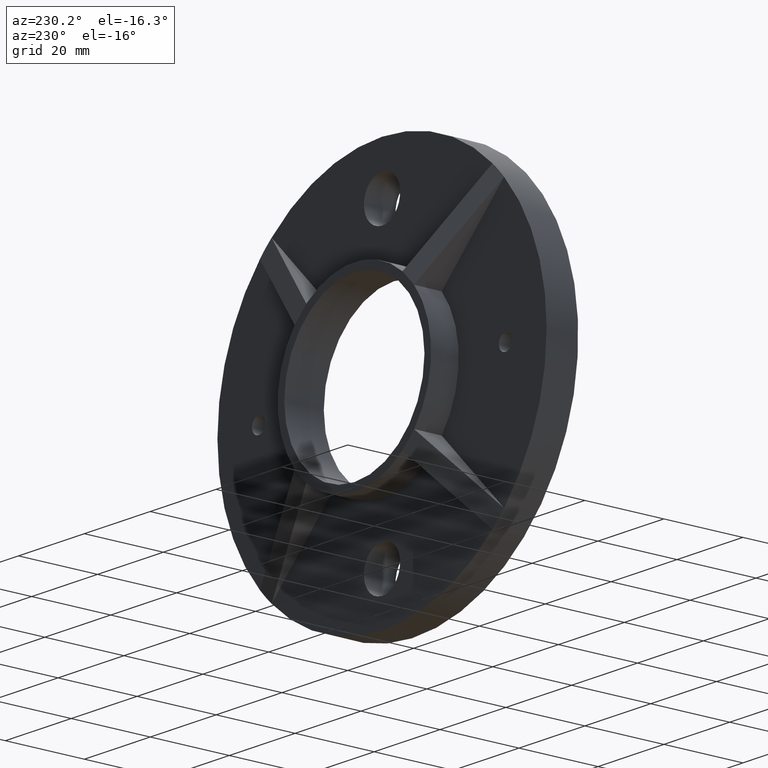
[diagram: clean part render]
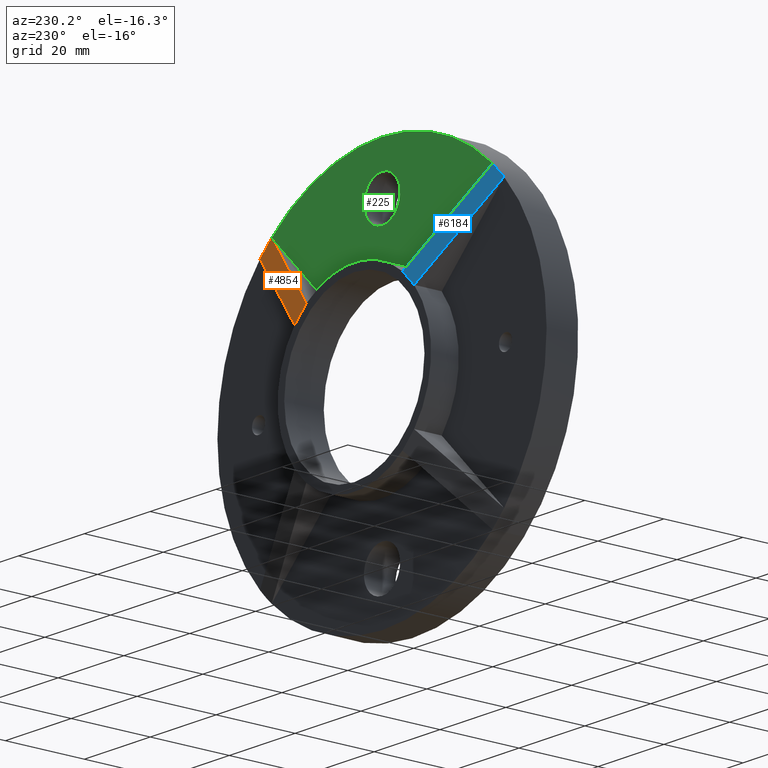
[diagram: same view with three faces highlighted in distinct colors, each labeled with its STEP entity id]
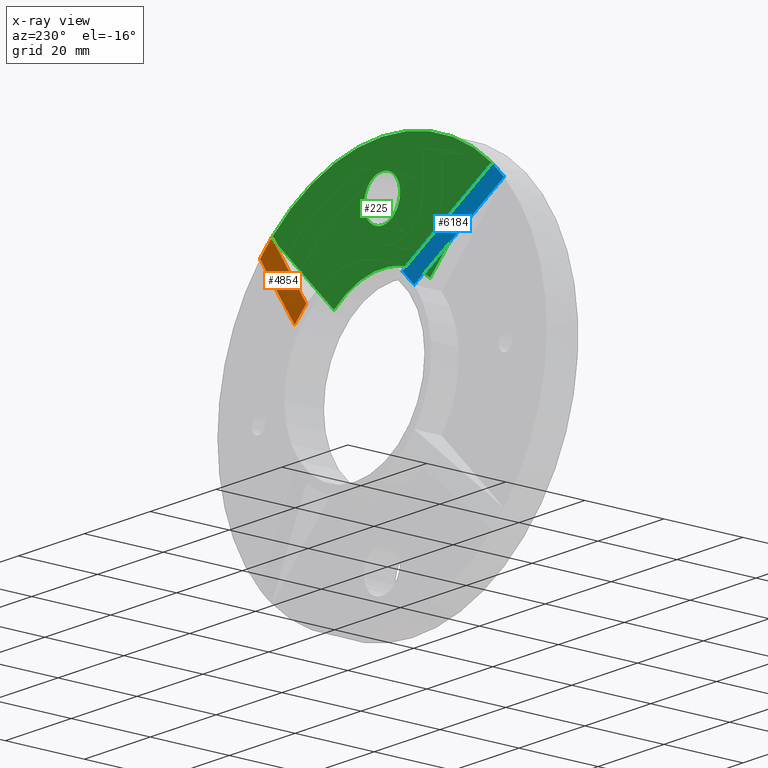
[diagram: x-ray of the same camera — body ghosted, the three highlighted faces saturated]
A machine part, auxiliary view with three faces highlighted in distinct colors.
The next image is the same camera in x-ray (body ghosted, the three faces saturated) — at least one of them is partly hidden behind the body in this view.
Their STEP definitions:

[orange] entity #4854 — the highlighted planar face has unit normal (-0.1789, -0.9675, -0.1789).
#579 = CARTESIAN_POINT ( 'NONE',  ( 12.64995997623135793, 17.03310506118021195, 9.114426070298652149 ) ) ;
#996 = PLANE ( 'NONE',  #7353 ) ;
#1315 = VECTOR ( 'NONE', #3850, 1000.000000000000000 ) ;
#1811 = VECTOR ( 'NONE', #6179, 1000.000000000000000 ) ;
#2003 = CARTESIAN_POINT ( 'NONE',  ( 18.14824313652096066, 15.00000000000000000, 14.61270923058827620 ) ) ;
#2114 = CARTESIAN_POINT ( 'NONE',  ( 37.07888418253015317, 8.000000000000000000, 33.54335027659752200 ) ) ;
#3352 = CARTESIAN_POINT ( 'NONE',  ( 14.61270923058821580, 15.00000000000000000, 18.14824313652101040 ) ) ;
#3413 = VERTEX_POINT ( 'NONE', #4580 ) ;
#3445 = ORIENTED_EDGE ( 'NONE', *, *, #6820, .T. ) ;
#3649 = EDGE_CURVE ( 'NONE', #7548, #3413, #4557, .T. ) ;
#3717 = LINE ( 'NONE', #3352, #8746 ) ;
#3741 = LINE ( 'NONE', #10354, #1315 ) ;
#3850 = DIRECTION ( 'NONE',  ( -0.7071067811865489050, -0.000000000000000000, 0.7071067811865462405 ) ) ;
#4011 = ORIENTED_EDGE ( 'NONE', *, *, #4293, .F. ) ;
#4293 = EDGE_CURVE ( 'NONE', #7334, #7548, #10130, .T. ) ;
#4557 = LINE ( 'NONE', #11599, #1811 ) ;
#4558 = FACE_OUTER_BOUND ( 'NONE', #11354, .T. ) ;
#4580 = CARTESIAN_POINT ( 'NONE',  ( 33.54335027659739410, 8.000000000000000000, 37.07888418253026686 ) ) ;
#4854 = ADVANCED_FACE ( 'NONE', ( #4558 ), #996, .F. ) ;
#5814 = VERTEX_POINT ( 'NONE', #8535 ) ;
#6179 = DIRECTION ( 'NONE',  ( -0.7071067811865489050, -0.000000000000000000, 0.7071067811865462405 ) ) ;
#6404 = DIRECTION ( 'NONE',  ( -0.1788721988383773775, -0.9674758255199186197, -0.1788721988383779604 ) ) ;
#6445 = DIRECTION ( 'NONE',  ( 0.000000000000000000, 0.1818042806142533552, -0.9833347362675306513 ) ) ;
#6820 = EDGE_CURVE ( 'NONE', #7334, #5814, #3741, .T. ) ;
#7259 = CARTESIAN_POINT ( 'NONE',  ( 66.38047618355467705, 15.00000000000000000, -33.61952381644525900 ) ) ;
#7334 = VERTEX_POINT ( 'NONE', #2003 ) ;
#7353 = AXIS2_PLACEMENT_3D ( 'NONE', #7259, #6404, #6445 ) ;
#7548 = VERTEX_POINT ( 'NONE', #2114 ) ;
#7833 = ORIENTED_EDGE ( 'NONE', *, *, #3649, .F. ) ;
#8421 = VECTOR ( 'NONE', #9912, 1000.000000000000000 ) ;
#8535 = CARTESIAN_POINT ( 'NONE',  ( 14.61270923058821936, 15.00000000000000000, 18.14824313652100329 ) ) ;
#8746 = VECTOR ( 'NONE', #11730, 1000.000000000000000 ) ;
#9199 = EDGE_CURVE ( 'NONE', #5814, #3413, #3717, .T. ) ;
#9657 = ORIENTED_EDGE ( 'NONE', *, *, #9199, .T. ) ;
#9912 = DIRECTION ( 'NONE',  ( 0.6841087168591863943, -0.2529634895287306007, 0.6841087168591885037 ) ) ;
#10130 = LINE ( 'NONE', #579, #8421 ) ;
#10354 = CARTESIAN_POINT ( 'NONE',  ( 66.38047618355467705, 15.00000000000000000, -33.61952381644525900 ) ) ;
#11354 = EDGE_LOOP ( 'NONE', ( #3445, #9657, #7833, #4011 ) ) ;
#11599 = CARTESIAN_POINT ( 'NONE',  ( 85.31111722956386245, 8.000000000000000000, -14.68888277043600077 ) ) ;
#11730 = DIRECTION ( 'NONE',  ( 0.6841087168591860612, -0.2529634895287306562, 0.6841087168591888368 ) ) ;

[blue] entity #6184 — the highlighted planar face has unit normal (0.1789, -0.9675, -0.1789).
#2 = EDGE_CURVE ( 'NONE', #10232, #3854, #3482, .T. ) ;
#120 = CARTESIAN_POINT ( 'NONE',  ( -37.07888418252991158, 8.000000000000000000, 33.54335027659778490 ) ) ;
#1035 = VECTOR ( 'NONE', #3069, 1000.000000000000000 ) ;
#1065 = ORIENTED_EDGE ( 'NONE', *, *, #4687, .F. ) ;
#1196 = VECTOR ( 'NONE', #9719, 1000.000000000000000 ) ;
#1236 = DIRECTION ( 'NONE',  ( 0.000000000000000000, 0.1818042806142545209, -0.9833347362675304293 ) ) ;
#1399 = VECTOR ( 'NONE', #11651, 1000.000000000000000 ) ;
#1553 = VECTOR ( 'NONE', #3343, 1000.000000000000000 ) ;
#1830 = ORIENTED_EDGE ( 'NONE', *, *, #6895, .T. ) ;
#2060 = EDGE_LOOP ( 'NONE', ( #1830, #11814, #1065, #8251 ) ) ;
#2334 = AXIS2_PLACEMENT_3D ( 'NONE', #3916, #9400, #1236 ) ;
#2537 = LINE ( 'NONE', #10552, #1399 ) ;
#2916 = VERTEX_POINT ( 'NONE', #9363 ) ;
#3069 = DIRECTION ( 'NONE',  ( -0.7071067811865535679, -0.000000000000000000, -0.7071067811865415775 ) ) ;
#3343 = DIRECTION ( 'NONE',  ( -0.6841087168591885037, -0.2529634895287306007, 0.6841087168591863943 ) ) ;
#3464 = LINE ( 'NONE', #8578, #1035 ) ;
#3482 = LINE ( 'NONE', #6840, #1196 ) ;
#3854 = VERTEX_POINT ( 'NONE', #120 ) ;
#3916 = CARTESIAN_POINT ( 'NONE',  ( 33.61952381644594823, 15.00000000000000000, 66.38047618355433599 ) ) ;
#4687 = EDGE_CURVE ( 'NONE', #6839, #3854, #2537, .T. ) ;
#5812 = PLANE ( 'NONE',  #2334 ) ;
#6025 = CARTESIAN_POINT ( 'NONE',  ( -18.14824313652100329, 15.00000000000000000, 14.61270923058822113 ) ) ;
#6184 = ADVANCED_FACE ( 'NONE', ( #6592 ), #5812, .F. ) ;
#6592 = FACE_OUTER_BOUND ( 'NONE', #2060, .T. ) ;
#6839 = VERTEX_POINT ( 'NONE', #8538 ) ;
#6840 = CARTESIAN_POINT ( 'NONE',  ( -18.14824313652085763, 15.00000000000000000, 14.61270923058840587 ) ) ;
#6895 = EDGE_CURVE ( 'NONE', #2916, #10232, #3464, .T. ) ;
#7163 = LINE ( 'NONE', #7824, #1553 ) ;
#7824 = CARTESIAN_POINT ( 'NONE',  ( -9.114426070298650373, 17.03310506118020839, 12.64995997623135793 ) ) ;
#8251 = ORIENTED_EDGE ( 'NONE', *, *, #11007, .F. ) ;
#8538 = CARTESIAN_POINT ( 'NONE',  ( -33.54335027659750779, 8.000000000000000000, 37.07888418253013896 ) ) ;
#8578 = CARTESIAN_POINT ( 'NONE',  ( 33.61952381644594823, 15.00000000000000000, 66.38047618355433599 ) ) ;
#9363 = CARTESIAN_POINT ( 'NONE',  ( -14.61270923058825311, 15.00000000000000000, 18.14824313652095000 ) ) ;
#9400 = DIRECTION ( 'NONE',  ( 0.1788721988383761563, -0.9674758255199186197, -0.1788721988383791539 ) ) ;
#9719 = DIRECTION ( 'NONE',  ( -0.6841087168591816203, -0.2529634895287306562, 0.6841087168591932777 ) ) ;
#10232 = VERTEX_POINT ( 'NONE', #6025 ) ;
#10552 = CARTESIAN_POINT ( 'NONE',  ( 14.68888277043689428, 8.000000000000000000, 85.31111722956372034 ) ) ;
#11007 = EDGE_CURVE ( 'NONE', #2916, #6839, #7163, .T. ) ;
#11651 = DIRECTION ( 'NONE',  ( -0.7071067811865535679, -0.000000000000000000, -0.7071067811865415775 ) ) ;
#11814 = ORIENTED_EDGE ( 'NONE', *, *, #2, .T. ) ;

[green] entity #225 — the highlighted planar face has unit normal (0, 1, 0).
#225 = ADVANCED_FACE ( 'NONE', ( #2473, #774 ), #3903, .T. ) ;
#280 = AXIS2_PLACEMENT_3D ( 'NONE', #4188, #586, #7808 ) ;
#294 = EDGE_CURVE ( 'NONE', #6839, #5089, #4360, .T. ) ;
#354 = ORIENTED_EDGE ( 'NONE', *, *, #5828, .F. ) ;
#586 = DIRECTION ( 'NONE',  ( 0.000000000000000000, 1.000000000000000000, 0.000000000000000000 ) ) ;
#741 = VERTEX_POINT ( 'NONE', #5445 ) ;
#774 = FACE_OUTER_BOUND ( 'NONE', #9087, .T. ) ;
#1735 = ORIENTED_EDGE ( 'NONE', *, *, #7749, .F. ) ;
#2473 = FACE_BOUND ( 'NONE', #8569, .T. ) ;
#2854 = DIRECTION ( 'NONE',  ( 0.000000000000000000, -0.000000000000000000, 1.000000000000000000 ) ) ;
#3394 = VECTOR ( 'NONE', #3976, 1000.000000000000000 ) ;
#3413 = VERTEX_POINT ( 'NONE', #4580 ) ;
#3675 = CARTESIAN_POINT ( 'NONE',  ( 0.000000000000000000, 8.000000000000000000, 37.50000000000000000 ) ) ;
#3765 = VECTOR ( 'NONE', #5201, 999.9999999999998863 ) ;
#3903 = PLANE ( 'NONE',  #11207 ) ;
#3976 = DIRECTION ( 'NONE',  ( 0.7071067811865464625, 0.000000000000000000, 0.7071067811865486830 ) ) ;
#4188 = CARTESIAN_POINT ( 'NONE',  ( 0.000000000000000000, 8.000000000000000000, 0.000000000000000000 ) ) ;
#4360 = LINE ( 'NONE', #8708, #3765 ) ;
#4580 = CARTESIAN_POINT ( 'NONE',  ( 33.54335027659739410, 8.000000000000000000, 37.07888418253026686 ) ) ;
#5089 = VERTEX_POINT ( 'NONE', #7010 ) ;
#5167 = ORIENTED_EDGE ( 'NONE', *, *, #294, .F. ) ;
#5196 = ORIENTED_EDGE ( 'NONE', *, *, #11493, .F. ) ;
#5201 = DIRECTION ( 'NONE',  ( 0.7071067811865486830, -0.000000000000000000, -0.7071067811865464625 ) ) ;
#5357 = DIRECTION ( 'NONE',  ( 0.000000000000000000, 0.000000000000000000, 1.000000000000000000 ) ) ;
#5445 = CARTESIAN_POINT ( 'NONE',  ( 14.61270923058821936, 8.000000000000000000, 18.14824313652100329 ) ) ;
#5526 = EDGE_CURVE ( 'NONE', #6839, #3413, #6126, .T. ) ;
#5828 = EDGE_CURVE ( 'NONE', #5089, #741, #6821, .T. ) ;
#5947 = DIRECTION ( 'NONE',  ( 0.000000000000000000, 0.000000000000000000, 1.000000000000000000 ) ) ;
#6033 = CARTESIAN_POINT ( 'NONE',  ( 0.000000000000000000, 8.000000000000000000, 43.00000000000000000 ) ) ;
#6126 = CIRCLE ( 'NONE', #280, 50.00000000000000000 ) ;
#6459 = DIRECTION ( 'NONE',  ( 0.000000000000000000, 1.000000000000000000, 0.000000000000000000 ) ) ;
#6514 = CARTESIAN_POINT ( 'NONE',  ( 0.000000000000000000, 8.000000000000000000, 0.000000000000000000 ) ) ;
#6821 = CIRCLE ( 'NONE', #8126, 23.30000000000000071 ) ;
#6831 = VERTEX_POINT ( 'NONE', #6033 ) ;
#6839 = VERTEX_POINT ( 'NONE', #8538 ) ;
#7010 = CARTESIAN_POINT ( 'NONE',  ( -14.61270923058828153, 8.000000000000000000, 18.14824313652095711 ) ) ;
#7082 = CARTESIAN_POINT ( 'NONE',  ( 0.000000000000000000, 8.000000000000000000, 0.000000000000000000 ) ) ;
#7749 = EDGE_CURVE ( 'NONE', #6831, #6831, #10298, .T. ) ;
#7808 = DIRECTION ( 'NONE',  ( 0.000000000000000000, 0.000000000000000000, 1.000000000000000000 ) ) ;
#8126 = AXIS2_PLACEMENT_3D ( 'NONE', #7082, #9529, #5947 ) ;
#8538 = CARTESIAN_POINT ( 'NONE',  ( -33.54335027659750779, 8.000000000000000000, 37.07888418253013896 ) ) ;
#8569 = EDGE_LOOP ( 'NONE', ( #1735 ) ) ;
#8708 = CARTESIAN_POINT ( 'NONE',  ( -14.61270923058827265, 8.000000000000000000, 18.14824313652096421 ) ) ;
#8909 = ORIENTED_EDGE ( 'NONE', *, *, #5526, .T. ) ;
#9087 = EDGE_LOOP ( 'NONE', ( #354, #5167, #8909, #5196 ) ) ;
#9529 = DIRECTION ( 'NONE',  ( 0.000000000000000000, 1.000000000000000000, 0.000000000000000000 ) ) ;
#9881 = AXIS2_PLACEMENT_3D ( 'NONE', #3675, #6459, #5357 ) ;
#10131 = LINE ( 'NONE', #10525, #3394 ) ;
#10142 = DIRECTION ( 'NONE',  ( 0.000000000000000000, 1.000000000000000000, 0.000000000000000000 ) ) ;
#10298 = CIRCLE ( 'NONE', #9881, 5.499999999999998224 ) ;
#10525 = CARTESIAN_POINT ( 'NONE',  ( 14.61270923058821936, 8.000000000000000000, 18.14824313652100329 ) ) ;
#11207 = AXIS2_PLACEMENT_3D ( 'NONE', #6514, #10142, #2854 ) ;
#11493 = EDGE_CURVE ( 'NONE', #741, #3413, #10131, .T. ) ;